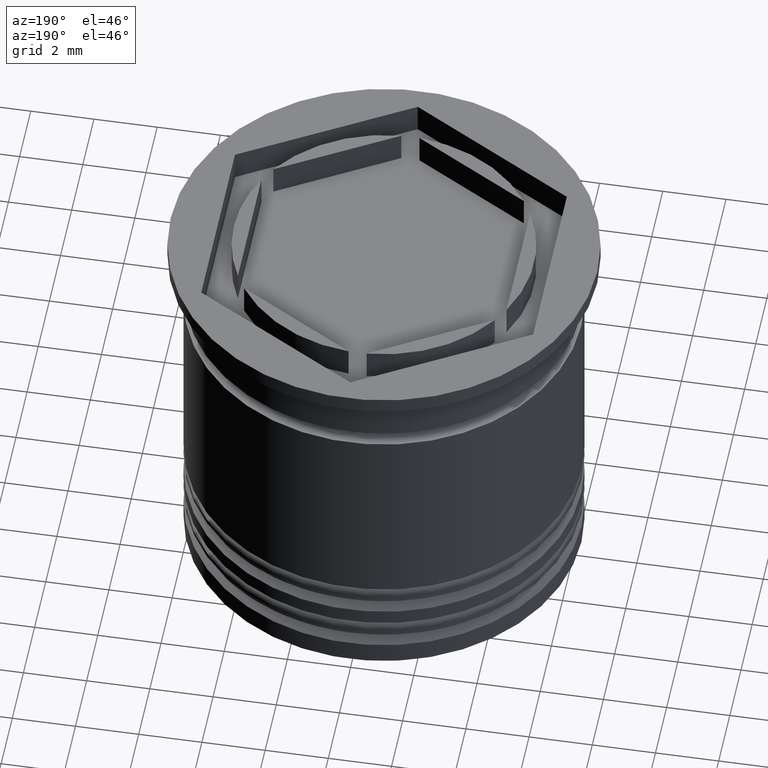
[diagram: clean part render]
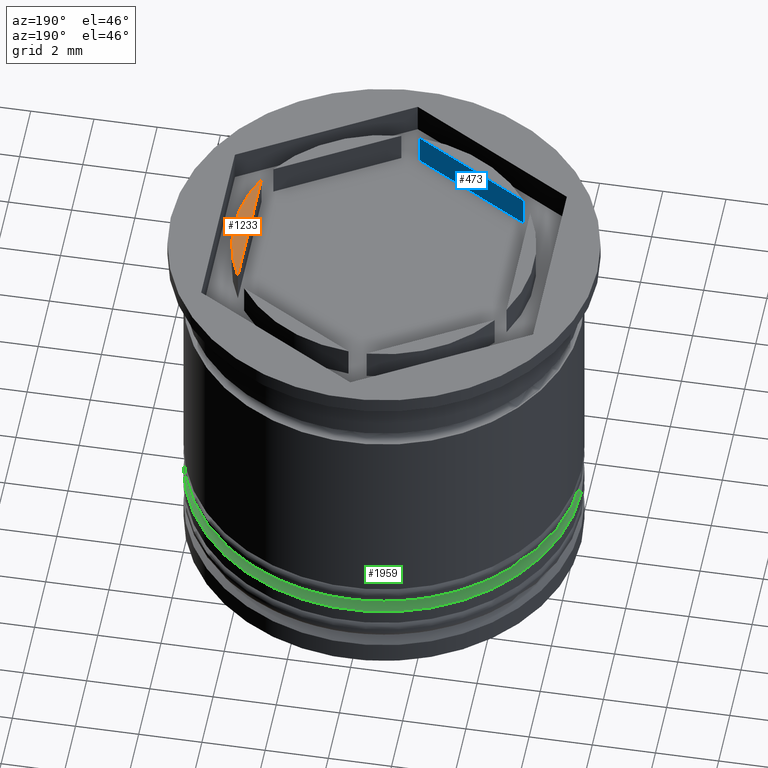
[diagram: same view with three faces highlighted in distinct colors, each labeled with its STEP entity id]
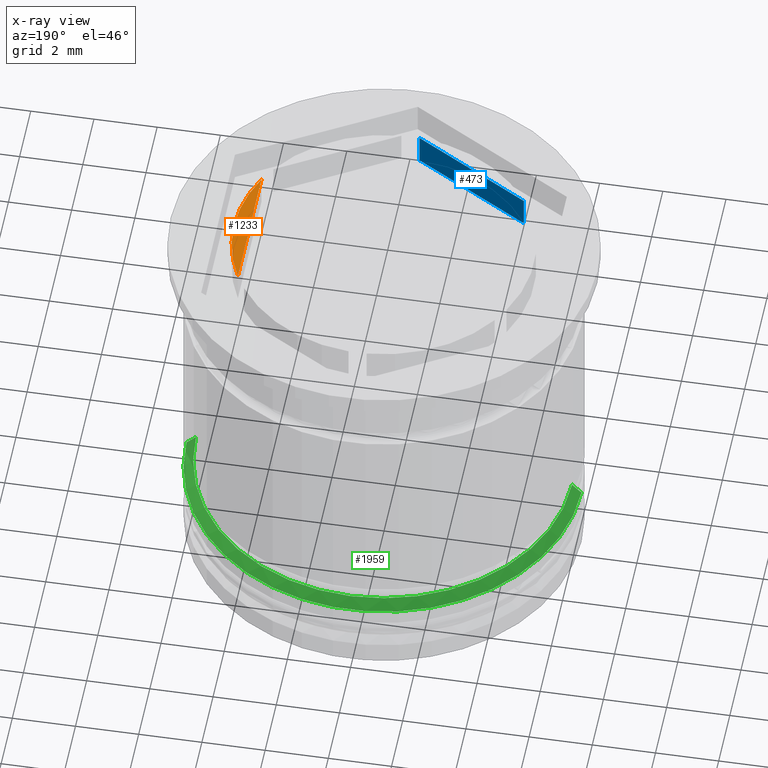
[diagram: x-ray of the same camera — body ghosted, the three highlighted faces saturated]
A machine part, auxiliary view with three faces highlighted in distinct colors.
The next image is the same camera in x-ray (body ghosted, the three faces saturated) — at least one of them is partly hidden behind the body in this view.
Their STEP definitions:

[orange] entity #1233 — the highlighted planar face has unit normal (0, -0, 1).
#84 = AXIS2_PLACEMENT_3D ( 'NONE', #288, #909, #134 ) ;
#134 = DIRECTION ( 'NONE',  ( 1.000000000000000000, 0.000000000000000000, 0.000000000000000000 ) ) ;
#245 = DIRECTION ( 'NONE',  ( -0.000000000000000000, 0.000000000000000000, 1.000000000000000000 ) ) ;
#288 = CARTESIAN_POINT ( 'NONE',  ( 0.000000000000000000, 0.000000000000000000, 0.000000000000000000 ) ) ;
#337 = ORIENTED_EDGE ( 'NONE', *, *, #1435, .F. ) ;
#469 = DIRECTION ( 'NONE',  ( 1.767428939690775795E-16, 1.000000000000000000, 0.000000000000000000 ) ) ;
#556 = CARTESIAN_POINT ( 'NONE',  ( 0.000000000000000000, 0.000000000000000000, 0.000000000000000000 ) ) ;
#655 = EDGE_LOOP ( 'NONE', ( #337, #1087, #1837 ) ) ;
#729 = DIRECTION ( 'NONE',  ( 0.000000000000000000, -0.000000000000000000, 1.000000000000000000 ) ) ;
#762 = VERTEX_POINT ( 'NONE', #1613 ) ;
#860 = PLANE ( 'NONE',  #1375 ) ;
#864 = CARTESIAN_POINT ( 'NONE',  ( 0.000000000000000000, 0.000000000000000000, 0.000000000000000000 ) ) ;
#909 = DIRECTION ( 'NONE',  ( -0.000000000000000000, 0.000000000000000000, 1.000000000000000000 ) ) ;
#1036 = CARTESIAN_POINT ( 'NONE',  ( 4.249999999999998224, 2.121320343559643273, 0.000000000000000000 ) ) ;
#1087 = ORIENTED_EDGE ( 'NONE', *, *, #1668, .T. ) ;
#1160 = CIRCLE ( 'NONE', #1414, 4.749999999999999112 ) ;
#1196 = DIRECTION ( 'NONE',  ( 1.000000000000000000, 0.000000000000000000, 0.000000000000000000 ) ) ;
#1200 = VERTEX_POINT ( 'NONE', #1036 ) ;
#1202 = CARTESIAN_POINT ( 'NONE',  ( 4.249999999999997335, -7.511572993685793184E-16, 0.000000000000000000 ) ) ;
#1228 = LINE ( 'NONE', #1202, #1748 ) ;
#1233 = ADVANCED_FACE ( 'NONE', ( #1333 ), #860, .T. ) ;
#1333 = FACE_OUTER_BOUND ( 'NONE', #655, .T. ) ;
#1375 = AXIS2_PLACEMENT_3D ( 'NONE', #556, #729, #1196 ) ;
#1414 = AXIS2_PLACEMENT_3D ( 'NONE', #864, #245, #1797 ) ;
#1435 = EDGE_CURVE ( 'NONE', #762, #1200, #1228, .T. ) ;
#1439 = CARTESIAN_POINT ( 'NONE',  ( 4.749999999999999112, 0.000000000000000000, 0.000000000000000000 ) ) ;
#1531 = VERTEX_POINT ( 'NONE', #1439 ) ;
#1613 = CARTESIAN_POINT ( 'NONE',  ( 4.249999999999997335, -2.121320343559645494, 0.000000000000000000 ) ) ;
#1668 = EDGE_CURVE ( 'NONE', #762, #1531, #1160, .T. ) ;
#1748 = VECTOR ( 'NONE', #469, 1000.000000000000000 ) ;
#1797 = DIRECTION ( 'NONE',  ( 1.000000000000000000, 0.000000000000000000, 0.000000000000000000 ) ) ;
#1837 = ORIENTED_EDGE ( 'NONE', *, *, #1862, .T. ) ;
#1862 = EDGE_CURVE ( 'NONE', #1531, #1200, #1950, .T. ) ;
#1950 = CIRCLE ( 'NONE', #84, 4.749999999999999112 ) ;

[blue] entity #473 — the highlighted planar face has unit normal (-0.5, -0.866, 0).
#171 = VECTOR ( 'NONE', #318, 1000.000000000000000 ) ;
#249 = LINE ( 'NONE', #1781, #455 ) ;
#281 = VERTEX_POINT ( 'NONE', #1822 ) ;
#318 = DIRECTION ( 'NONE',  ( -0.000000000000000000, -0.000000000000000000, 1.000000000000000000 ) ) ;
#320 = DIRECTION ( 'NONE',  ( -0.4999999999999997780, -0.8660254037844388186, 0.000000000000000000 ) ) ;
#335 = DIRECTION ( 'NONE',  ( -0.8660254037844387076, 0.4999999999999997224, 0.000000000000000000 ) ) ;
#371 = VERTEX_POINT ( 'NONE', #1186 ) ;
#455 = VECTOR ( 'NONE', #1184, 1000.000000000000000 ) ;
#473 = ADVANCED_FACE ( 'NONE', ( #1229 ), #1395, .F. ) ;
#487 = CARTESIAN_POINT ( 'NONE',  ( -3.962117307087382745, -2.619947794304042787, -1.000000000000000888 ) ) ;
#742 = AXIS2_PLACEMENT_3D ( 'NONE', #960, #320, #1582 ) ;
#834 = EDGE_CURVE ( 'NONE', #1902, #371, #1631, .T. ) ;
#960 = CARTESIAN_POINT ( 'NONE',  ( -4.249999999999998224, -2.453738644055909912, -13.98396446904154011 ) ) ;
#964 = ORIENTED_EDGE ( 'NONE', *, *, #834, .T. ) ;
#1032 = VECTOR ( 'NONE', #335, 1000.000000000000114 ) ;
#1043 = VERTEX_POINT ( 'NONE', #487 ) ;
#1044 = ORIENTED_EDGE ( 'NONE', *, *, #1061, .T. ) ;
#1061 = EDGE_CURVE ( 'NONE', #1043, #1902, #1082, .T. ) ;
#1082 = LINE ( 'NONE', #1700, #171 ) ;
#1167 = ORIENTED_EDGE ( 'NONE', *, *, #1180, .T. ) ;
#1180 = EDGE_CURVE ( 'NONE', #371, #281, #249, .T. ) ;
#1184 = DIRECTION ( 'NONE',  ( 0.000000000000000000, 0.000000000000000000, -1.000000000000000000 ) ) ;
#1186 = CARTESIAN_POINT ( 'NONE',  ( -0.2878826929126141465, -4.741268137863685617, 0.000000000000000000 ) ) ;
#1190 = CARTESIAN_POINT ( 'NONE',  ( -3.962117307087382745, -2.619947794304042787, 0.000000000000000000 ) ) ;
#1229 = FACE_OUTER_BOUND ( 'NONE', #1738, .T. ) ;
#1244 = VECTOR ( 'NONE', #1819, 1000.000000000000114 ) ;
#1365 = ORIENTED_EDGE ( 'NONE', *, *, #1539, .T. ) ;
#1395 = PLANE ( 'NONE',  #742 ) ;
#1539 = EDGE_CURVE ( 'NONE', #281, #1043, #1746, .T. ) ;
#1582 = DIRECTION ( 'NONE',  ( 0.8660254037844387076, -0.4999999999999997224, 0.000000000000000000 ) ) ;
#1631 = LINE ( 'NONE', #1827, #1244 ) ;
#1700 = CARTESIAN_POINT ( 'NONE',  ( -3.962117307087382745, -2.619947794304042787, -1.000000000000000000 ) ) ;
#1738 = EDGE_LOOP ( 'NONE', ( #1167, #1365, #1044, #964 ) ) ;
#1746 = LINE ( 'NONE', #1755, #1032 ) ;
#1755 = CARTESIAN_POINT ( 'NONE',  ( -4.249999999999998224, -2.453738644055909912, -1.000000000000000888 ) ) ;
#1781 = CARTESIAN_POINT ( 'NONE',  ( -0.2878826929126141465, -4.741268137863684728, -1.000000000000000000 ) ) ;
#1819 = DIRECTION ( 'NONE',  ( 0.8660254037844387076, -0.4999999999999997224, 0.000000000000000000 ) ) ;
#1822 = CARTESIAN_POINT ( 'NONE',  ( -0.2878826929126141465, -4.741268137863685617, -1.000000000000000888 ) ) ;
#1827 = CARTESIAN_POINT ( 'NONE',  ( -2.124999999999998224, -3.680607966083863758, 0.000000000000000000 ) ) ;
#1902 = VERTEX_POINT ( 'NONE', #1190 ) ;

[green] entity #1959 — the highlighted conical surface has half-angle 45 deg.
#139 = CONICAL_SURFACE ( 'NONE', #1165, 5.749999999999991118, 0.7853981633974533860 ) ;
#200 = CIRCLE ( 'NONE', #423, 5.950000000000000178 ) ;
#271 = DIRECTION ( 'NONE',  ( 0.000000000000000000, 0.000000000000000000, -1.000000000000000000 ) ) ;
#330 = VERTEX_POINT ( 'NONE', #1211 ) ;
#412 = CARTESIAN_POINT ( 'NONE',  ( -5.950000000000000178, 7.286648454926751965E-16, -9.700000000000006395 ) ) ;
#423 = AXIS2_PLACEMENT_3D ( 'NONE', #1408, #1112, #685 ) ;
#442 = CARTESIAN_POINT ( 'NONE',  ( 6.250000000000000000, 0.000000000000000000, -10.00000000000000355 ) ) ;
#459 = EDGE_CURVE ( 'NONE', #1262, #1413, #1548, .T. ) ;
#491 = EDGE_CURVE ( 'NONE', #797, #330, #510, .T. ) ;
#510 = LINE ( 'NONE', #934, #1242 ) ;
#574 = CARTESIAN_POINT ( 'NONE',  ( 0.000000000000000000, 0.000000000000000000, -10.00000000000000355 ) ) ;
#584 = DIRECTION ( 'NONE',  ( 1.000000000000000000, 0.000000000000000000, 0.000000000000000000 ) ) ;
#596 = FACE_OUTER_BOUND ( 'NONE', #1740, .T. ) ;
#644 = CIRCLE ( 'NONE', #1162, 6.250000000000000000 ) ;
#685 = DIRECTION ( 'NONE',  ( -1.000000000000000000, 0.000000000000000000, 0.000000000000000000 ) ) ;
#786 = CARTESIAN_POINT ( 'NONE',  ( 5.749999999999991118, 7.041719095097270033E-16, -9.500000000000000000 ) ) ;
#797 = VERTEX_POINT ( 'NONE', #412 ) ;
#829 = ORIENTED_EDGE ( 'NONE', *, *, #1562, .F. ) ;
#880 = CARTESIAN_POINT ( 'NONE',  ( 0.000000000000000000, 0.000000000000000000, -9.500000000000000000 ) ) ;
#920 = ORIENTED_EDGE ( 'NONE', *, *, #1263, .F. ) ;
#934 = CARTESIAN_POINT ( 'NONE',  ( -5.749999999999991118, 0.000000000000000000, -9.500000000000000000 ) ) ;
#990 = ORIENTED_EDGE ( 'NONE', *, *, #491, .F. ) ;
#1078 = ORIENTED_EDGE ( 'NONE', *, *, #459, .T. ) ;
#1112 = DIRECTION ( 'NONE',  ( -0.000000000000000000, -0.000000000000000000, 1.000000000000000000 ) ) ;
#1162 = AXIS2_PLACEMENT_3D ( 'NONE', #574, #1170, #584 ) ;
#1165 = AXIS2_PLACEMENT_3D ( 'NONE', #880, #271, #1498 ) ;
#1170 = DIRECTION ( 'NONE',  ( 0.000000000000000000, 0.000000000000000000, -1.000000000000000000 ) ) ;
#1211 = CARTESIAN_POINT ( 'NONE',  ( -6.250000000000000000, 7.654042494670957606E-16, -10.00000000000000355 ) ) ;
#1242 = VECTOR ( 'NONE', #1389, 1000.000000000000000 ) ;
#1262 = VERTEX_POINT ( 'NONE', #1820 ) ;
#1263 = EDGE_CURVE ( 'NONE', #330, #1413, #644, .T. ) ;
#1389 = DIRECTION ( 'NONE',  ( -0.7071067811865512365, 0.000000000000000000, -0.7071067811865439090 ) ) ;
#1408 = CARTESIAN_POINT ( 'NONE',  ( 0.000000000000000000, 0.000000000000000000, -9.700000000000006395 ) ) ;
#1413 = VERTEX_POINT ( 'NONE', #442 ) ;
#1498 = DIRECTION ( 'NONE',  ( -1.000000000000000000, 0.000000000000000000, 0.000000000000000000 ) ) ;
#1548 = LINE ( 'NONE', #786, #1970 ) ;
#1562 = EDGE_CURVE ( 'NONE', #1262, #797, #200, .T. ) ;
#1740 = EDGE_LOOP ( 'NONE', ( #829, #1078, #920, #990 ) ) ;
#1820 = CARTESIAN_POINT ( 'NONE',  ( 5.950000000000000178, 0.000000000000000000, -9.700000000000006395 ) ) ;
#1900 = DIRECTION ( 'NONE',  ( 0.7071067811865512365, 8.659560562354978464E-17, -0.7071067811865439090 ) ) ;
#1959 = ADVANCED_FACE ( 'NONE', ( #596 ), #139, .T. ) ;
#1970 = VECTOR ( 'NONE', #1900, 1000.000000000000000 ) ;